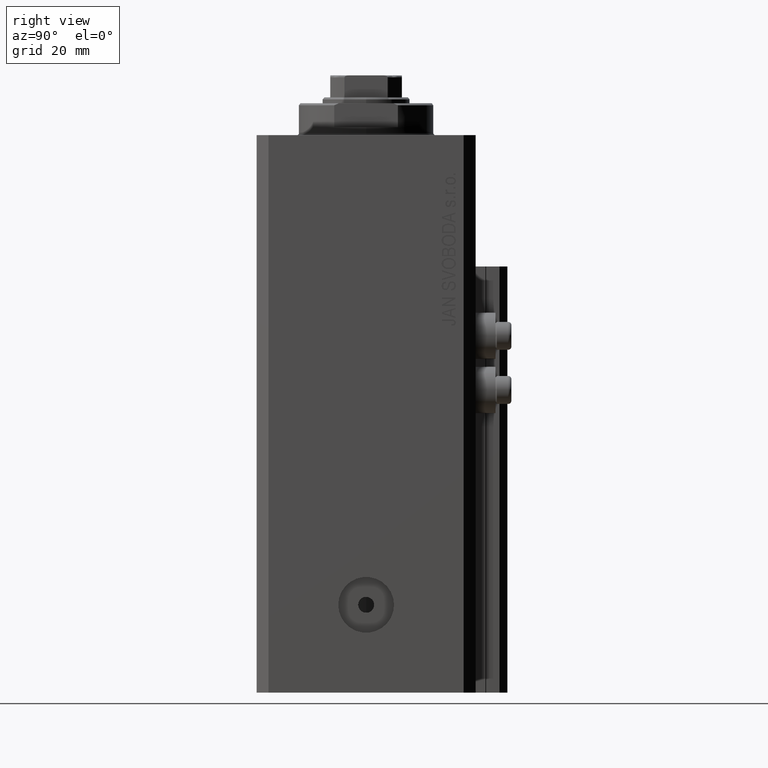
[diagram: clean part render]
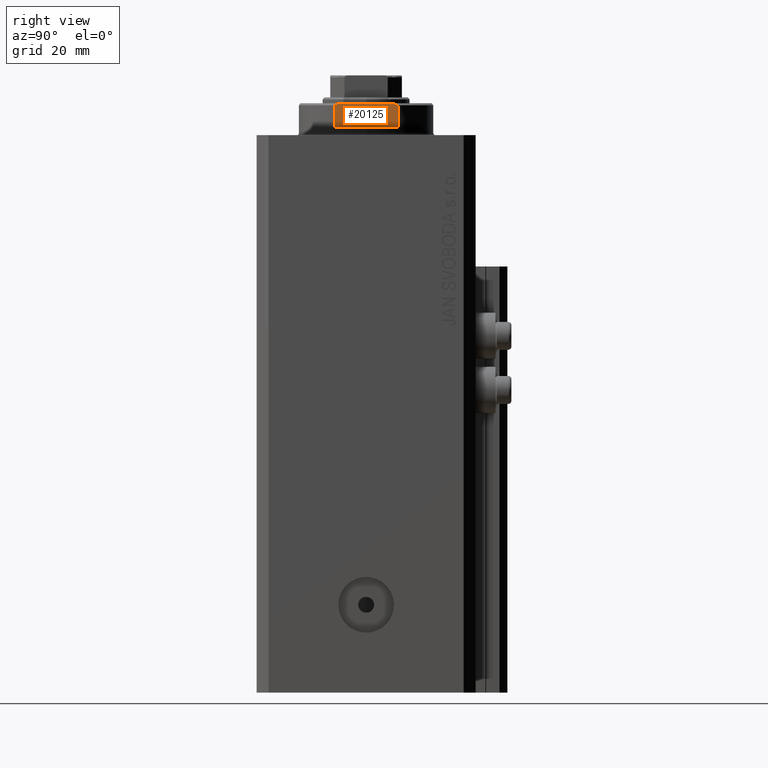
[diagram: same view with one face highlighted and labeled with its STEP entity id]
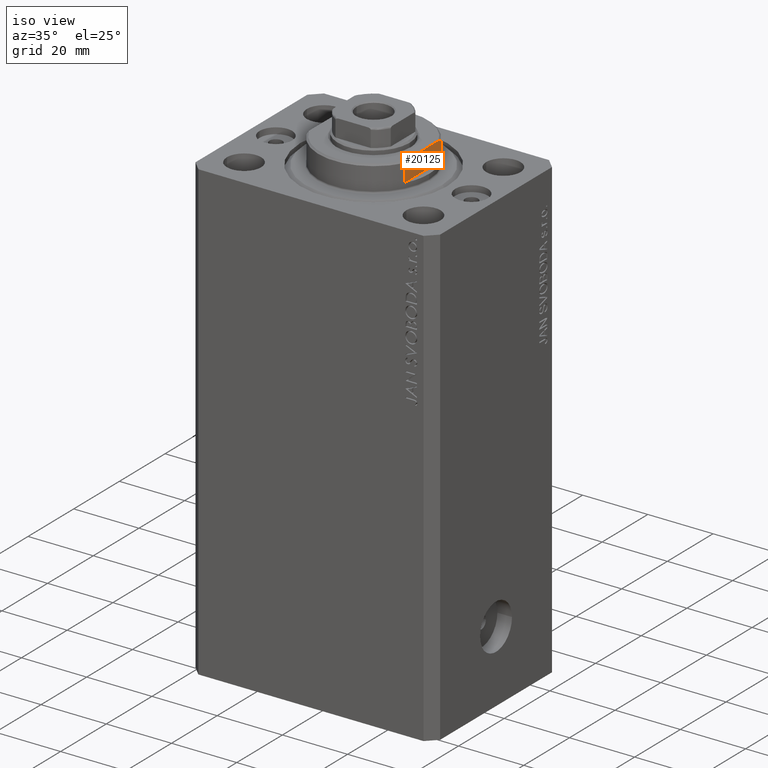
[diagram: same view with one face highlighted and labeled with its STEP entity id]
A machine part, right view. The second image highlights one B-rep face of the part: STEP entity #20125.
A second angle (iso view) of the same face is appended — the face is thin or edge-on in the first view.
In plain terms, the highlighted planar face has unit normal (-1, 0, 0).
Its self-contained STEP definition (entity closure, byte-faithful):
#1623 = ORIENTED_EDGE ( 'NONE', *, *, #22226, .F. ) ;
#1862 = CARTESIAN_POINT ( 'NONE',  ( -15.00000000000000000, -8.000000000000001776, -7.500000000000007105 ) ) ;
#2702 = CARTESIAN_POINT ( 'NONE',  ( -15.00000000000000000, 7.628315461082482152, -7.674910371255308839 ) ) ;
#2726 = EDGE_CURVE ( 'NONE', #14140, #30254, #34843, .T. ) ;
#3250 = DIRECTION ( 'NONE',  ( -0.000000000000000000, -1.000000000000000000, -0.000000000000000000 ) ) ;
#4050 = DIRECTION ( 'NONE',  ( -0.000000000000000000, -0.000000000000000000, 1.000000000000000000 ) ) ;
#5682 = EDGE_LOOP ( 'NONE', ( #7520, #24962, #37592, #1623, #20166, #18965 ) ) ;
#7520 = ORIENTED_EDGE ( 'NONE', *, *, #27693, .T. ) ;
#7759 = VECTOR ( 'NONE', #4050, 1000.000000000000000 ) ;
#8821 = CARTESIAN_POINT ( 'NONE',  ( -15.00000000000000000, -42.42640687119285303, -2.000000000000000000 ) ) ;
#12246 = VECTOR ( 'NONE', #32359, 1000.000000000000000 ) ;
#13316 = CARTESIAN_POINT ( 'NONE',  ( -14.99999999999999645, -6.873863542433765517, -8.000000000000000000 ) ) ;
#13674 = CARTESIAN_POINT ( 'NONE',  ( -15.00000000000000000, 8.000000000000001776, -7.500000000000007105 ) ) ;
#14140 = VERTEX_POINT ( 'NONE', #26638 ) ;
#14241 = FACE_OUTER_BOUND ( 'NONE', #5682, .T. ) ;
#14472 = DIRECTION ( 'NONE',  ( 1.000000000000000000, 0.000000000000000000, 0.000000000000000000 ) ) ;
#15087 = EDGE_CURVE ( 'NONE', #36715, #14140, #33170, .T. ) ;
#15165 = VECTOR ( 'NONE', #23399, 1000.000000000000000 ) ;
#17138 = VERTEX_POINT ( 'NONE', #39406 ) ;
#17823 = DIRECTION ( 'NONE',  ( 0.000000000000000000, 0.000000000000000000, -1.000000000000000000 ) ) ;
#17961 = EDGE_CURVE ( 'NONE', #17138, #30028, #32372, .T. ) ;
#18662 = CARTESIAN_POINT ( 'NONE',  ( -15.00000000000000000, 8.000000000000001776, -7.500000000000007105 ) ) ;
#18965 = ORIENTED_EDGE ( 'NONE', *, *, #15087, .F. ) ;
#20125 = ADVANCED_FACE ( 'NONE', ( #14241 ), #35731, .F. ) ;
#20166 = ORIENTED_EDGE ( 'NONE', *, *, #2726, .F. ) ;
#21803 = VECTOR ( 'NONE', #3250, 1000.000000000000000 ) ;
#22226 = EDGE_CURVE ( 'NONE', #30254, #29606, #43085, .T. ) ;
#23399 = DIRECTION ( 'NONE',  ( -0.000000000000000000, -1.000000000000000000, -0.000000000000000000 ) ) ;
#24962 = ORIENTED_EDGE ( 'NONE', *, *, #17961, .T. ) ;
#25778 = CARTESIAN_POINT ( 'NONE',  ( -15.00000000000000000, 8.000000000000001776, -8.000000000000000000 ) ) ;
#26638 = CARTESIAN_POINT ( 'NONE',  ( -14.99999999999999645, 8.000000000000003553, -2.000000000000000000 ) ) ;
#27693 = EDGE_CURVE ( 'NONE', #36715, #17138, #46553, .T. ) ;
#27878 = CARTESIAN_POINT ( 'NONE',  ( -15.00000000000000000, -7.254193676168128491, -7.841555306644508505 ) ) ;
#28331 = CARTESIAN_POINT ( 'NONE',  ( -15.00000000000000000, -42.42640687119285303, -2.000000000000000000 ) ) ;
#28839 = B_SPLINE_CURVE_WITH_KNOTS ( 'NONE', 3,
 ( #13316, #27878, #45545, #1862 ),
 .UNSPECIFIED., .F., .F.,
 ( 4, 4 ),
 ( 0.04875332532859059931, 0.04998905627745663105 ),
 .UNSPECIFIED. ) ;
#29606 = VERTEX_POINT ( 'NONE', #41050 ) ;
#30028 = VERTEX_POINT ( 'NONE', #44465 ) ;
#30254 = VERTEX_POINT ( 'NONE', #43940 ) ;
#32066 = CARTESIAN_POINT ( 'NONE',  ( -15.00000000000000000, 7.253126193285931222, -7.842000017654665811 ) ) ;
#32359 = DIRECTION ( 'NONE',  ( 0.000000000000000000, 0.000000000000000000, -1.000000000000000000 ) ) ;
#32372 = LINE ( 'NONE', #36181, #21803 ) ;
#33170 = LINE ( 'NONE', #25778, #7759 ) ;
#34332 = AXIS2_PLACEMENT_3D ( 'NONE', #28331, #14472, #17823 ) ;
#34843 = LINE ( 'NONE', #8821, #15165 ) ;
#35731 = PLANE ( 'NONE',  #34332 ) ;
#36181 = CARTESIAN_POINT ( 'NONE',  ( -15.00000000000000000, -42.42640687119285303, -8.000000000000000000 ) ) ;
#36715 = VERTEX_POINT ( 'NONE', #18662 ) ;
#37592 = ORIENTED_EDGE ( 'NONE', *, *, #42927, .T. ) ;
#38744 = CARTESIAN_POINT ( 'NONE',  ( -14.99999999999999645, 6.873863542433765517, -8.000000000000000000 ) ) ;
#39406 = CARTESIAN_POINT ( 'NONE',  ( -14.99999999999999645, 6.873863542433765517, -8.000000000000000000 ) ) ;
#41050 = CARTESIAN_POINT ( 'NONE',  ( -15.00000000000000000, -8.000000000000001776, -7.500000000000007105 ) ) ;
#42927 = EDGE_CURVE ( 'NONE', #30028, #29606, #28839, .T. ) ;
#43085 = LINE ( 'NONE', #43318, #12246 ) ;
#43318 = CARTESIAN_POINT ( 'NONE',  ( -15.00000000000000000, -8.000000000000001776, -8.000000000000000000 ) ) ;
#43940 = CARTESIAN_POINT ( 'NONE',  ( -14.99999999999999645, -8.000000000000003553, -2.000000000000000000 ) ) ;
#44465 = CARTESIAN_POINT ( 'NONE',  ( -14.99999999999999645, -6.873863542433765517, -8.000000000000000000 ) ) ;
#45545 = CARTESIAN_POINT ( 'NONE',  ( -15.00000000000000000, -7.629305121525810307, -7.674444648693742543 ) ) ;
#46553 = B_SPLINE_CURVE_WITH_KNOTS ( 'NONE', 3,
 ( #13674, #2702, #32066, #38744 ),
 .UNSPECIFIED., .F., .F.,
 ( 4, 4 ),
 ( 0.03336039268697044147, 0.03459498301323850333 ),
 .UNSPECIFIED. ) ;